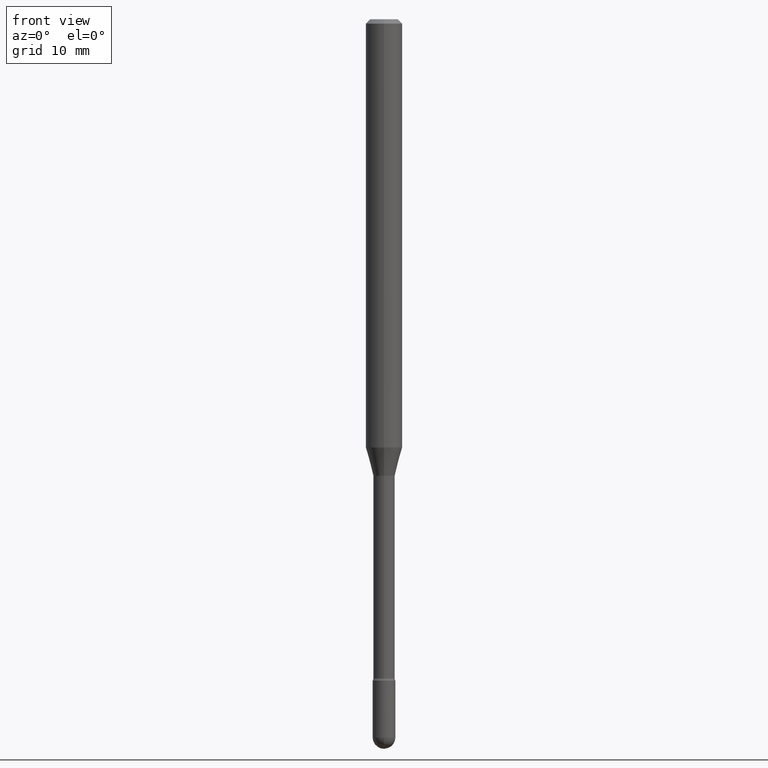
[diagram: clean part render]
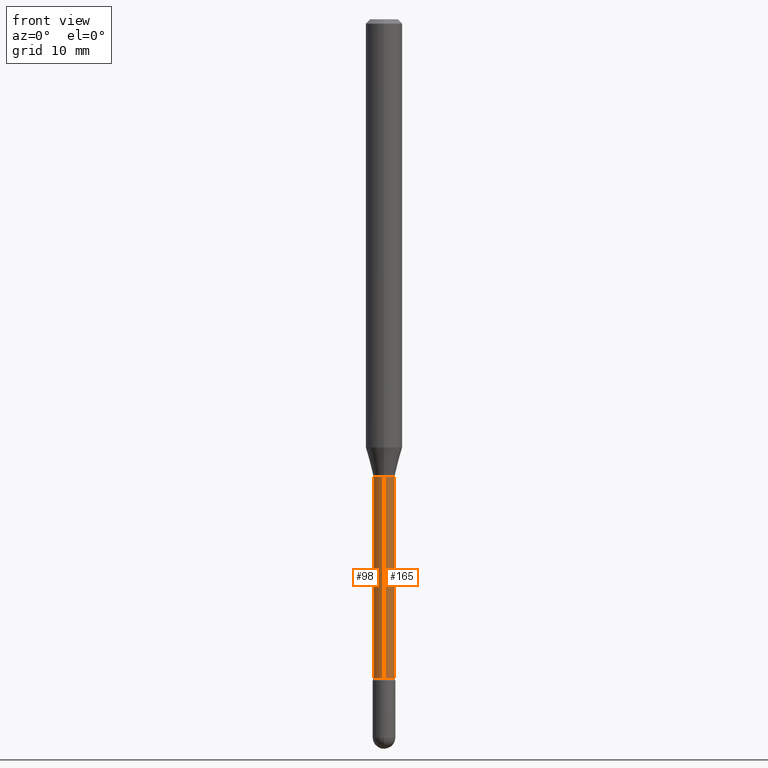
[diagram: same view with one multi-face feature highlighted, each face labeled with its STEP entity id]
A machine part, front view. The highlighted faces form ONE feature: a constant-radius fillet chain: 2 tangent blend faces with common blend radius 0.9309 mm. The faces share edges in the B-rep.
Their STEP definitions:
[1] entity #165 (Cylinder):
#4 = EDGE_CURVE ( 'NONE', #139, #440, #284, .T. ) ;
#10 = VERTEX_POINT ( 'NONE', #301 ) ;
#44 = CARTESIAN_POINT ( 'NONE',  ( 3.829493438681968082E-29, -5.467641997557930663E-15, -1.565974787463811246 ) ) ;
#64 = EDGE_CURVE ( 'NONE', #139, #10, #327, .T. ) ;
#73 = ORIENTED_EDGE ( 'NONE', *, *, #422, .F. ) ;
#78 = AXIS2_PLACEMENT_3D ( 'NONE', #207, #386, #138 ) ;
#94 = VECTOR ( 'NONE', #449, 39.37007874015748143 ) ;
#104 = ORIENTED_EDGE ( 'NONE', *, *, #143, .T. ) ;
#108 = CARTESIAN_POINT ( 'NONE',  ( 2.604139126560769297E-16, 0.03665000000000003672, 3.501089636942781913E-16 ) ) ;
#110 = DIRECTION ( 'NONE',  ( -2.445437480436105023E-29, 3.491526199098709901E-15, 1.000000000000000000 ) ) ;
#138 = DIRECTION ( 'NONE',  ( -6.982962677686265922E-15, -1.000000000000000000, 0.000000000000000000 ) ) ;
#139 = VERTEX_POINT ( 'NONE', #314 ) ;
#143 = EDGE_CURVE ( 'NONE', #440, #413, #234, .T. ) ;
#165 = ADVANCED_FACE ( 'NONE', ( #337 ), #560, .T. ) ;
#167 = CARTESIAN_POINT ( 'NONE',  ( -1.169113584055446105E-44, 1.669184350826100908E-30, 4.780733988912460139E-16 ) ) ;
#177 = CARTESIAN_POINT ( 'NONE',  ( 2.687627898013134923E-16, 0.03664999999999218189, -2.257939137763241177 ) ) ;
#193 = CARTESIAN_POINT ( 'NONE',  ( -2.559255821372018895E-16, -0.03665000000000003672, 6.060378340882139352E-16 ) ) ;
#207 = CARTESIAN_POINT ( 'NONE',  ( 5.521648996029813535E-29, -7.883653655470708131E-15, -2.257939137763241177 ) ) ;
#216 = DIRECTION ( 'NONE',  ( -2.445437480436105303E-29, 3.491526199098709507E-15, 1.000000000000000000 ) ) ;
#234 = LINE ( 'NONE', #108, #94 ) ;
#257 = CIRCLE ( 'NONE', #410, 0.03665000000000000202 ) ;
#284 = CIRCLE ( 'NONE', #78, 0.03665000000000006447 ) ;
#301 = CARTESIAN_POINT ( 'NONE',  ( -2.559255821371633339E-16, -0.03665000000000546987, -1.565974787463811246 ) ) ;
#304 = AXIS2_PLACEMENT_3D ( 'NONE', #167, #375, #428 ) ;
#314 = CARTESIAN_POINT ( 'NONE',  ( -2.559255821371468665E-16, -0.03665000000000794705, -2.257939137763241177 ) ) ;
#326 = EDGE_LOOP ( 'NONE', ( #519, #104, #73, #389 ) ) ;
#327 = LINE ( 'NONE', #193, #502 ) ;
#337 = FACE_OUTER_BOUND ( 'NONE', #326, .T. ) ;
#343 = CARTESIAN_POINT ( 'NONE',  ( 2.604139126561321500E-16, 0.03664999999999453417, -1.565974787463811246 ) ) ;
#375 = DIRECTION ( 'NONE',  ( -2.445437480436105303E-29, 3.491526199098709507E-15, 1.000000000000000000 ) ) ;
#386 = DIRECTION ( 'NONE',  ( -2.445437480436105303E-29, 3.491526199098709507E-15, 1.000000000000000000 ) ) ;
#389 = ORIENTED_EDGE ( 'NONE', *, *, #64, .F. ) ;
#394 = DIRECTION ( 'NONE',  ( -6.982962677686265133E-15, -1.000000000000000000, 0.000000000000000000 ) ) ;
#410 = AXIS2_PLACEMENT_3D ( 'NONE', #44, #216, #394 ) ;
#413 = VERTEX_POINT ( 'NONE', #343 ) ;
#422 = EDGE_CURVE ( 'NONE', #10, #413, #257, .T. ) ;
#428 = DIRECTION ( 'NONE',  ( -6.982962677686265922E-15, -1.000000000000000000, 3.491526199098709901E-15 ) ) ;
#440 = VERTEX_POINT ( 'NONE', #177 ) ;
#449 = DIRECTION ( 'NONE',  ( -2.445437480436105023E-29, 3.491526199098709901E-15, 1.000000000000000000 ) ) ;
#502 = VECTOR ( 'NONE', #110, 39.37007874015748143 ) ;
#519 = ORIENTED_EDGE ( 'NONE', *, *, #4, .T. ) ;
#560 = CYLINDRICAL_SURFACE ( 'NONE', #304, 0.03665000000000003672 ) ;
[2] entity #98 (Cylinder):
#10 = VERTEX_POINT ( 'NONE', #301 ) ;
#13 = FACE_OUTER_BOUND ( 'NONE', #408, .T. ) ;
#15 = DIRECTION ( 'NONE',  ( -6.982962677686265133E-15, -1.000000000000000000, 0.000000000000000000 ) ) ;
#56 = CARTESIAN_POINT ( 'NONE',  ( -1.169113584055446105E-44, 1.669184350826100908E-30, 4.780733988912460139E-16 ) ) ;
#61 = DIRECTION ( 'NONE',  ( -2.445437480436105303E-29, 3.491526199098709507E-15, 1.000000000000000000 ) ) ;
#64 = EDGE_CURVE ( 'NONE', #139, #10, #327, .T. ) ;
#94 = VECTOR ( 'NONE', #449, 39.37007874015748143 ) ;
#97 = CYLINDRICAL_SURFACE ( 'NONE', #460, 0.03665000000000003672 ) ;
#98 = ADVANCED_FACE ( 'NONE', ( #13 ), #97, .T. ) ;
#108 = CARTESIAN_POINT ( 'NONE',  ( 2.604139126560769297E-16, 0.03665000000000003672, 3.501089636942781913E-16 ) ) ;
#110 = DIRECTION ( 'NONE',  ( -2.445437480436105023E-29, 3.491526199098709901E-15, 1.000000000000000000 ) ) ;
#134 = AXIS2_PLACEMENT_3D ( 'NONE', #182, #432, #261 ) ;
#139 = VERTEX_POINT ( 'NONE', #314 ) ;
#143 = EDGE_CURVE ( 'NONE', #440, #413, #234, .T. ) ;
#147 = ORIENTED_EDGE ( 'NONE', *, *, #391, .T. ) ;
#148 = DIRECTION ( 'NONE',  ( -2.445437480436105303E-29, 3.491526199098709507E-15, 1.000000000000000000 ) ) ;
#153 = DIRECTION ( 'NONE',  ( -6.982962677686265922E-15, -1.000000000000000000, 3.491526199098709901E-15 ) ) ;
#159 = EDGE_CURVE ( 'NONE', #413, #10, #186, .T. ) ;
#177 = CARTESIAN_POINT ( 'NONE',  ( 2.687627898013134923E-16, 0.03664999999999218189, -2.257939137763241177 ) ) ;
#182 = CARTESIAN_POINT ( 'NONE',  ( 5.521648996029813535E-29, -7.883653655470708131E-15, -2.257939137763241177 ) ) ;
#186 = CIRCLE ( 'NONE', #512, 0.03665000000000000202 ) ;
#193 = CARTESIAN_POINT ( 'NONE',  ( -2.559255821372018895E-16, -0.03665000000000003672, 6.060378340882139352E-16 ) ) ;
#234 = LINE ( 'NONE', #108, #94 ) ;
#261 = DIRECTION ( 'NONE',  ( -6.982962677686265922E-15, -1.000000000000000000, 0.000000000000000000 ) ) ;
#301 = CARTESIAN_POINT ( 'NONE',  ( -2.559255821371633339E-16, -0.03665000000000546987, -1.565974787463811246 ) ) ;
#314 = CARTESIAN_POINT ( 'NONE',  ( -2.559255821371468665E-16, -0.03665000000000794705, -2.257939137763241177 ) ) ;
#317 = CARTESIAN_POINT ( 'NONE',  ( 3.829493438681968082E-29, -5.467641997557930663E-15, -1.565974787463811246 ) ) ;
#327 = LINE ( 'NONE', #193, #502 ) ;
#343 = CARTESIAN_POINT ( 'NONE',  ( 2.604139126561321500E-16, 0.03664999999999453417, -1.565974787463811246 ) ) ;
#391 = EDGE_CURVE ( 'NONE', #440, #139, #537, .T. ) ;
#408 = EDGE_LOOP ( 'NONE', ( #438, #147, #444, #501 ) ) ;
#413 = VERTEX_POINT ( 'NONE', #343 ) ;
#432 = DIRECTION ( 'NONE',  ( -2.445437480436105303E-29, 3.491526199098709507E-15, 1.000000000000000000 ) ) ;
#438 = ORIENTED_EDGE ( 'NONE', *, *, #143, .F. ) ;
#440 = VERTEX_POINT ( 'NONE', #177 ) ;
#444 = ORIENTED_EDGE ( 'NONE', *, *, #64, .T. ) ;
#449 = DIRECTION ( 'NONE',  ( -2.445437480436105023E-29, 3.491526199098709901E-15, 1.000000000000000000 ) ) ;
#460 = AXIS2_PLACEMENT_3D ( 'NONE', #56, #148, #153 ) ;
#501 = ORIENTED_EDGE ( 'NONE', *, *, #159, .F. ) ;
#502 = VECTOR ( 'NONE', #110, 39.37007874015748143 ) ;
#512 = AXIS2_PLACEMENT_3D ( 'NONE', #317, #61, #15 ) ;
#537 = CIRCLE ( 'NONE', #134, 0.03665000000000006447 ) ;